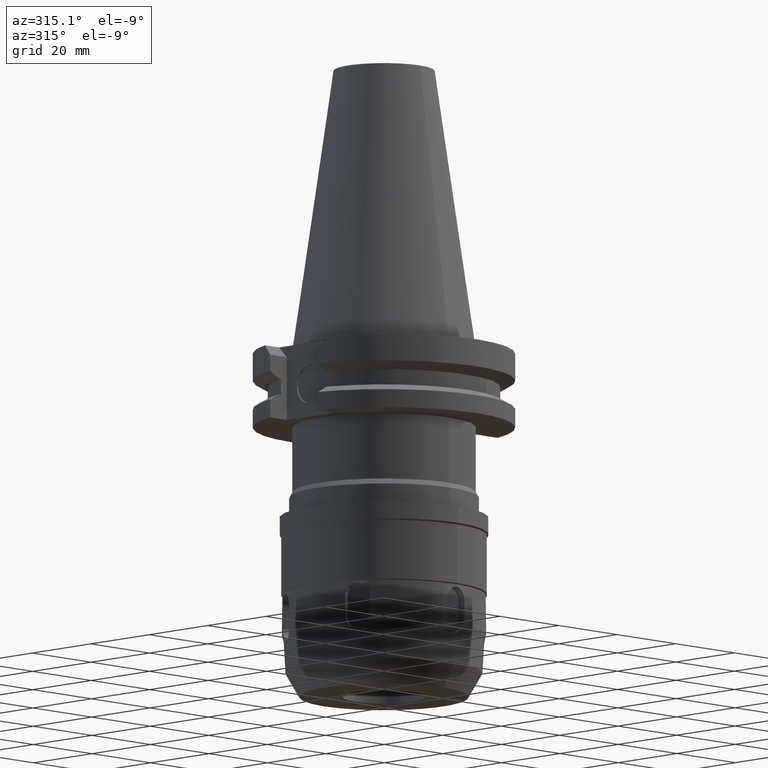
[diagram: clean part render]
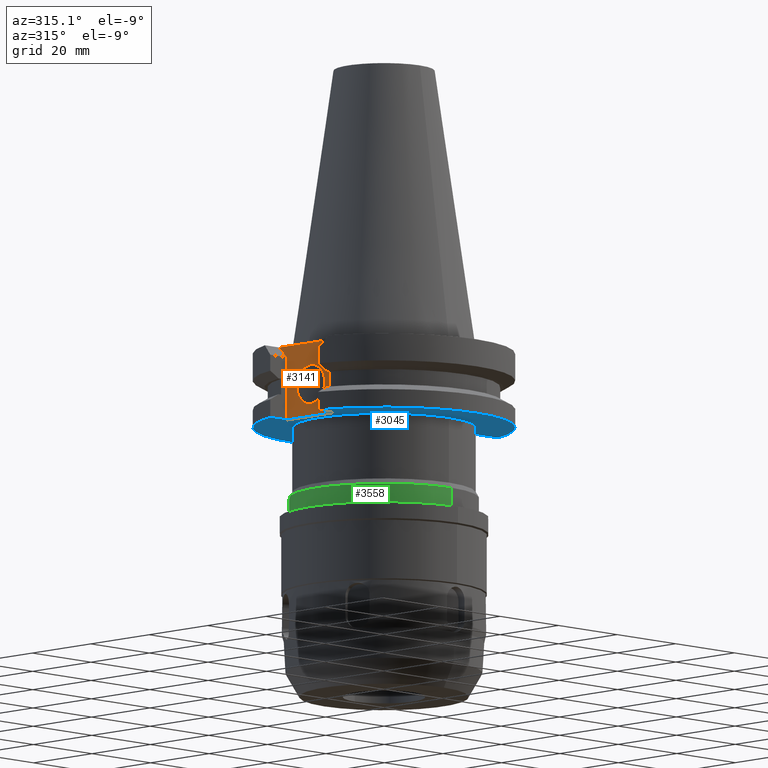
[diagram: same view with three faces highlighted in distinct colors, each labeled with its STEP entity id]
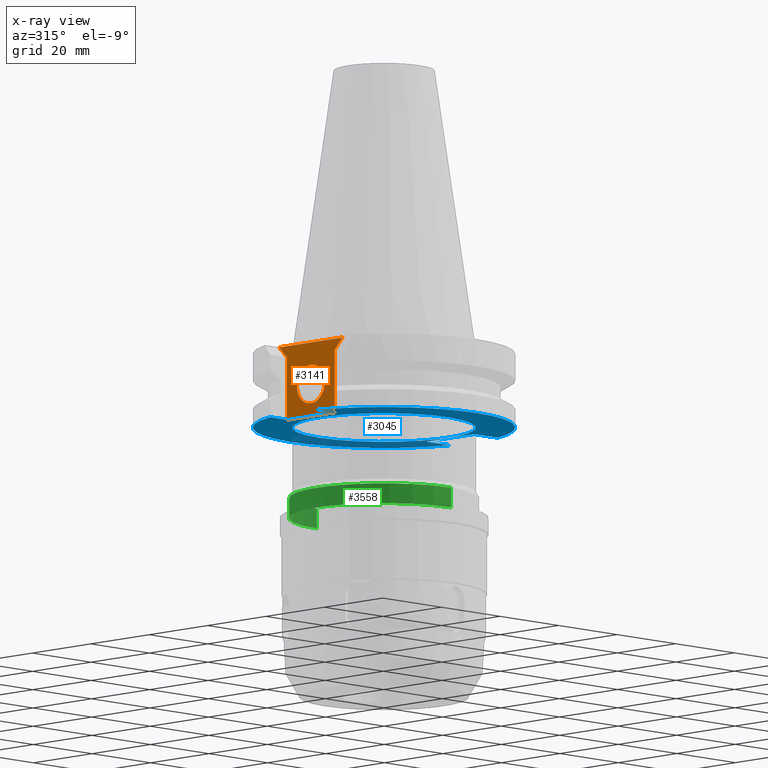
[diagram: x-ray of the same camera — body ghosted, the three highlighted faces saturated]
A machine part, auxiliary view with three faces highlighted in distinct colors.
The next image is the same camera in x-ray (body ghosted, the three faces saturated) — at least one of them is partly hidden behind the body in this view.
Their STEP definitions:

[orange] entity #3141 — the highlighted planar face has unit normal (1, 0, 0).
#221=DIRECTION('',(0.E0,-1.E0,0.E0));
#222=VECTOR('',#221,1.638E1);
#223=CARTESIAN_POINT('',(-2.498E1,8.19E0,-1.905E1));
#224=LINE('',#223,#222);
#328=DIRECTION('',(0.E0,7.071067811865E-1,7.071067811866E-1));
#329=VECTOR('',#328,3.818376618408E0);
#330=CARTESIAN_POINT('',(-2.498E1,8.19E0,-3.7E0));
#331=LINE('',#330,#329);
#335=DIRECTION('',(0.E0,-1.E0,0.E0));
#336=VECTOR('',#335,2.178E1);
#337=CARTESIAN_POINT('',(-2.498E1,1.089E1,-9.999999999997E-1));
#338=LINE('',#337,#336);
#342=DIRECTION('',(0.E0,7.071067811865E-1,-7.071067811866E-1));
#343=VECTOR('',#342,3.818376618408E0);
#344=CARTESIAN_POINT('',(-2.498E1,-1.089E1,-9.999999999997E-1));
#345=LINE('',#344,#343);
#349=CARTESIAN_POINT('',(-2.498E1,0.E0,-1.118E1));
#350=DIRECTION('',(-1.E0,0.E0,0.E0));
#351=DIRECTION('',(0.E0,1.E0,0.E0));
#352=AXIS2_PLACEMENT_3D('',#349,#350,#351);
#357=CARTESIAN_POINT('',(-2.498E1,0.E0,-1.118E1));
#358=DIRECTION('',(-1.E0,0.E0,0.E0));
#359=DIRECTION('',(0.E0,-1.E0,0.E0));
#360=AXIS2_PLACEMENT_3D('',#357,#358,#359);
#396=DIRECTION('',(0.E0,0.E0,-1.E0));
#397=VECTOR('',#396,1.535E1);
#398=CARTESIAN_POINT('',(-2.498E1,8.19E0,-3.7E0));
#399=LINE('',#398,#397);
#650=DIRECTION('',(0.E0,0.E0,1.E0));
#651=VECTOR('',#650,1.535E1);
#652=CARTESIAN_POINT('',(-2.498E1,-8.19E0,-1.905E1));
#653=LINE('',#652,#651);
#2728=CARTESIAN_POINT('',(-2.498E1,8.19E0,-1.905E1));
#2729=VERTEX_POINT('',#2728);
#2730=CARTESIAN_POINT('',(-2.498E1,-8.19E0,-1.905E1));
#2731=VERTEX_POINT('',#2730);
#2768=CARTESIAN_POINT('',(-2.498E1,-8.19E0,-3.7E0));
#2769=VERTEX_POINT('',#2768);
#2781=CARTESIAN_POINT('',(-2.498E1,8.19E0,-3.7E0));
#2782=VERTEX_POINT('',#2781);
#2783=CARTESIAN_POINT('',(-2.498E1,1.089E1,-9.999999999997E-1));
#2784=VERTEX_POINT('',#2783);
#2785=CARTESIAN_POINT('',(-2.498E1,-1.089E1,-9.999999999997E-1));
#2786=VERTEX_POINT('',#2785);
#2787=CARTESIAN_POINT('',(-2.498E1,4.7625E0,-1.118E1));
#2788=CARTESIAN_POINT('',(-2.498E1,-4.7625E0,-1.118E1));
#2789=VERTEX_POINT('',#2787);
#2790=VERTEX_POINT('',#2788);
#3119=CARTESIAN_POINT('',(-2.498E1,0.E0,0.E0));
#3120=DIRECTION('',(1.E0,0.E0,0.E0));
#3121=DIRECTION('',(0.E0,0.E0,-1.E0));
#3122=AXIS2_PLACEMENT_3D('',#3119,#3120,#3121);
#3123=PLANE('',#3122);
#3124=ORIENTED_EDGE('',*,*,#3027,.F.);
#3126=ORIENTED_EDGE('',*,*,#3125,.F.);
#3127=ORIENTED_EDGE('',*,*,#3111,.T.);
#3128=ORIENTED_EDGE('',*,*,#2977,.T.);
#3130=ORIENTED_EDGE('',*,*,#3129,.T.);
#3132=ORIENTED_EDGE('',*,*,#3131,.F.);
#3133=EDGE_LOOP('',(#3124,#3126,#3127,#3128,#3130,#3132));
#3134=FACE_OUTER_BOUND('',#3133,.F.);
#3136=ORIENTED_EDGE('',*,*,#3135,.T.);
#3138=ORIENTED_EDGE('',*,*,#3137,.T.);
#3139=EDGE_LOOP('',(#3136,#3138));
#3140=FACE_BOUND('',#3139,.F.);
#353=CIRCLE('',#352,4.7625E0);
#361=CIRCLE('',#360,4.7625E0);
#2977=EDGE_CURVE('',#2784,#2786,#338,.T.);
#3027=EDGE_CURVE('',#2729,#2731,#224,.T.);
#3111=EDGE_CURVE('',#2782,#2784,#331,.T.);
#3125=EDGE_CURVE('',#2782,#2729,#399,.T.);
#3129=EDGE_CURVE('',#2786,#2769,#345,.T.);
#3131=EDGE_CURVE('',#2731,#2769,#653,.T.);
#3135=EDGE_CURVE('',#2789,#2790,#353,.T.);
#3137=EDGE_CURVE('',#2790,#2789,#361,.T.);
#3141=ADVANCED_FACE('',(#3134,#3140),#3123,.F.);

[blue] entity #3045 — the highlighted planar face has unit normal (0, 0, -1).
#163=DIRECTION('',(0.E0,-1.E0,0.E0));
#164=VECTOR('',#163,1.638E1);
#165=CARTESIAN_POINT('',(2.257E1,8.19E0,-1.905E1));
#166=LINE('',#165,#164);
#198=DIRECTION('',(1.E0,0.E0,0.E0));
#199=VECTOR('',#198,8.105501625890E0);
#200=CARTESIAN_POINT('',(2.257E1,8.19E0,-1.905E1));
#201=LINE('',#200,#199);
#205=CARTESIAN_POINT('',(0.E0,2.154306800550E-14,-1.905E1));
#206=DIRECTION('',(0.E0,0.E0,1.E0));
#207=DIRECTION('',(9.661575315241E-1,2.579527559055E-1,0.E0));
#208=AXIS2_PLACEMENT_3D('',#205,#206,#207);
#213=CARTESIAN_POINT('',(0.E0,2.154306800550E-14,-1.905E1));
#214=DIRECTION('',(0.E0,0.E0,1.E0));
#215=DIRECTION('',(0.E0,1.E0,0.E0));
#216=AXIS2_PLACEMENT_3D('',#213,#214,#215);
#221=DIRECTION('',(0.E0,-1.E0,0.E0));
#222=VECTOR('',#221,1.638E1);
#223=CARTESIAN_POINT('',(-2.498E1,8.19E0,-1.905E1));
#224=LINE('',#223,#222);
#228=DIRECTION('',(-1.E0,0.E0,0.E0));
#229=VECTOR('',#228,5.695501625890E0);
#230=CARTESIAN_POINT('',(-2.498E1,-8.19E0,-1.905E1));
#231=LINE('',#230,#229);
#235=CARTESIAN_POINT('',(0.E0,2.154306800550E-14,-1.905E1));
#236=DIRECTION('',(0.E0,0.E0,1.E0));
#237=DIRECTION('',(-9.661575315241E-1,-2.579527559055E-1,0.E0));
#238=AXIS2_PLACEMENT_3D('',#235,#236,#237);
#243=CARTESIAN_POINT('',(0.E0,2.154306800550E-14,-1.905E1));
#244=DIRECTION('',(0.E0,0.E0,1.E0));
#245=DIRECTION('',(0.E0,-1.E0,0.E0));
#246=AXIS2_PLACEMENT_3D('',#243,#244,#245);
#251=CARTESIAN_POINT('',(0.E0,2.154306800550E-14,-1.905E1));
#252=DIRECTION('',(0.E0,0.E0,-1.E0));
#253=DIRECTION('',(0.E0,-1.E0,0.E0));
#254=AXIS2_PLACEMENT_3D('',#251,#252,#253);
#259=CARTESIAN_POINT('',(0.E0,2.154306800550E-14,-1.905E1));
#260=DIRECTION('',(0.E0,0.E0,-1.E0));
#261=DIRECTION('',(0.E0,1.E0,0.E0));
#262=AXIS2_PLACEMENT_3D('',#259,#260,#261);
#365=DIRECTION('',(-1.E0,0.E0,0.E0));
#366=VECTOR('',#365,5.695501625890E0);
#367=CARTESIAN_POINT('',(-2.498E1,8.19E0,-1.905E1));
#368=LINE('',#367,#366);
#605=DIRECTION('',(1.E0,0.E0,0.E0));
#606=VECTOR('',#605,8.105501625890E0);
#607=CARTESIAN_POINT('',(2.257E1,-8.19E0,-1.905E1));
#608=LINE('',#607,#606);
#2714=CARTESIAN_POINT('',(0.E0,2.2225E1,-1.905E1));
#2715=VERTEX_POINT('',#2714);
#2716=CARTESIAN_POINT('',(0.E0,-2.2225E1,-1.905E1));
#2717=VERTEX_POINT('',#2716);
#2718=CARTESIAN_POINT('',(2.257E1,8.19E0,-1.905E1));
#2719=CARTESIAN_POINT('',(2.257E1,-8.19E0,-1.905E1));
#2720=VERTEX_POINT('',#2718);
#2721=VERTEX_POINT('',#2719);
#2722=CARTESIAN_POINT('',(3.067550162589E1,8.19E0,-1.905E1));
#2723=VERTEX_POINT('',#2722);
#2724=CARTESIAN_POINT('',(-1.812171169876E-14,3.175E1,-1.905E1));
#2725=CARTESIAN_POINT('',(-3.067550162589E1,8.19E0,-1.905E1));
#2726=VERTEX_POINT('',#2724);
#2727=VERTEX_POINT('',#2725);
#2728=CARTESIAN_POINT('',(-2.498E1,8.19E0,-1.905E1));
#2729=VERTEX_POINT('',#2728);
#2730=CARTESIAN_POINT('',(-2.498E1,-8.19E0,-1.905E1));
#2731=VERTEX_POINT('',#2730);
#2732=CARTESIAN_POINT('',(-3.067550162589E1,-8.19E0,-1.905E1));
#2733=VERTEX_POINT('',#2732);
#2734=CARTESIAN_POINT('',(1.812171169876E-14,-3.175E1,-1.905E1));
#2735=CARTESIAN_POINT('',(3.067550162589E1,-8.19E0,-1.905E1));
#2736=VERTEX_POINT('',#2734);
#2737=VERTEX_POINT('',#2735);
#3013=CARTESIAN_POINT('',(0.E0,0.E0,-1.905E1));
#3014=DIRECTION('',(0.E0,0.E0,-1.E0));
#3015=DIRECTION('',(0.E0,-1.E0,0.E0));
#3016=AXIS2_PLACEMENT_3D('',#3013,#3014,#3015);
#3017=PLANE('',#3016);
#3018=ORIENTED_EDGE('',*,*,#2999,.F.);
#3020=ORIENTED_EDGE('',*,*,#3019,.T.);
#3022=ORIENTED_EDGE('',*,*,#3021,.T.);
#3024=ORIENTED_EDGE('',*,*,#3023,.T.);
#3026=ORIENTED_EDGE('',*,*,#3025,.F.);
#3028=ORIENTED_EDGE('',*,*,#3027,.T.);
#3030=ORIENTED_EDGE('',*,*,#3029,.T.);
#3032=ORIENTED_EDGE('',*,*,#3031,.T.);
#3034=ORIENTED_EDGE('',*,*,#3033,.T.);
#3036=ORIENTED_EDGE('',*,*,#3035,.F.);
#3037=EDGE_LOOP('',(#3018,#3020,#3022,#3024,#3026,#3028,#3030,#3032,#3034,
#3036));
#3038=FACE_OUTER_BOUND('',#3037,.F.);
#3040=ORIENTED_EDGE('',*,*,#3039,.T.);
#3042=ORIENTED_EDGE('',*,*,#3041,.T.);
#3043=EDGE_LOOP('',(#3040,#3042));
#3044=FACE_BOUND('',#3043,.F.);
#209=CIRCLE('',#208,3.175E1);
#217=CIRCLE('',#216,3.175E1);
#239=CIRCLE('',#238,3.175E1);
#247=CIRCLE('',#246,3.175E1);
#255=CIRCLE('',#254,2.2225E1);
#263=CIRCLE('',#262,2.2225E1);
#2999=EDGE_CURVE('',#2720,#2721,#166,.T.);
#3019=EDGE_CURVE('',#2720,#2723,#201,.T.);
#3021=EDGE_CURVE('',#2723,#2726,#209,.T.);
#3023=EDGE_CURVE('',#2726,#2727,#217,.T.);
#3025=EDGE_CURVE('',#2729,#2727,#368,.T.);
#3027=EDGE_CURVE('',#2729,#2731,#224,.T.);
#3029=EDGE_CURVE('',#2731,#2733,#231,.T.);
#3031=EDGE_CURVE('',#2733,#2736,#239,.T.);
#3033=EDGE_CURVE('',#2736,#2737,#247,.T.);
#3035=EDGE_CURVE('',#2721,#2737,#608,.T.);
#3039=EDGE_CURVE('',#2717,#2715,#255,.T.);
#3041=EDGE_CURVE('',#2715,#2717,#263,.T.);
#3045=ADVANCED_FACE('',(#3038,#3044),#3017,.T.);

[green] entity #3558 — the highlighted cylindrical surface (partial cylindrical patch) has radius 23 mm, axis along (0, 0, -1).
#900=CARTESIAN_POINT('',(0.E0,0.E0,-3.634233937587E1));
#901=DIRECTION('',(0.E0,0.E0,-1.E0));
#902=DIRECTION('',(0.E0,-1.E0,0.E0));
#903=AXIS2_PLACEMENT_3D('',#900,#901,#902);
#908=DIRECTION('',(0.E0,3.144861282189E-13,-1.E0));
#909=VECTOR('',#908,4.857660624131E0);
#910=CARTESIAN_POINT('',(0.E0,-2.3E1,-3.634233937587E1));
#911=LINE('',#910,#909);
#915=DIRECTION('',(0.E0,-3.137547651300E-13,-1.E0));
#916=VECTOR('',#915,4.857660624131E0);
#917=CARTESIAN_POINT('',(0.E0,2.3E1,-3.634233937587E1));
#918=LINE('',#917,#916);
#946=CARTESIAN_POINT('',(0.E0,2.154306800550E-14,-4.12E1));
#947=DIRECTION('',(0.E0,0.E0,1.E0));
#948=DIRECTION('',(0.E0,1.E0,0.E0));
#949=AXIS2_PLACEMENT_3D('',#946,#947,#948);
#2702=CARTESIAN_POINT('',(0.E0,-2.3E1,-4.12E1));
#2703=CARTESIAN_POINT('',(0.E0,2.3E1,-4.12E1));
#2704=VERTEX_POINT('',#2702);
#2705=VERTEX_POINT('',#2703);
#2706=CARTESIAN_POINT('',(0.E0,2.3E1,-3.634233937587E1));
#2707=VERTEX_POINT('',#2706);
#2708=CARTESIAN_POINT('',(0.E0,-2.3E1,-3.634233937587E1));
#2709=VERTEX_POINT('',#2708);
#3544=CARTESIAN_POINT('',(0.E0,2.154306800550E-14,7.59125E1));
#3545=DIRECTION('',(0.E0,0.E0,-1.E0));
#3546=DIRECTION('',(0.E0,-1.E0,0.E0));
#3547=AXIS2_PLACEMENT_3D('',#3544,#3545,#3546);
#3548=CYLINDRICAL_SURFACE('',#3547,2.3E1);
#3550=ORIENTED_EDGE('',*,*,#3549,.F.);
#3551=ORIENTED_EDGE('',*,*,#3539,.F.);
#3553=ORIENTED_EDGE('',*,*,#3552,.T.);
#3555=ORIENTED_EDGE('',*,*,#3554,.F.);
#3556=EDGE_LOOP('',(#3550,#3551,#3553,#3555));
#3557=FACE_OUTER_BOUND('',#3556,.F.);
#904=CIRCLE('',#903,2.3E1);
#950=CIRCLE('',#949,2.3E1);
#3539=EDGE_CURVE('',#2709,#2707,#904,.T.);
#3549=EDGE_CURVE('',#2707,#2705,#918,.T.);
#3552=EDGE_CURVE('',#2709,#2704,#911,.T.);
#3554=EDGE_CURVE('',#2705,#2704,#950,.T.);
#3558=ADVANCED_FACE('',(#3557),#3548,.T.);